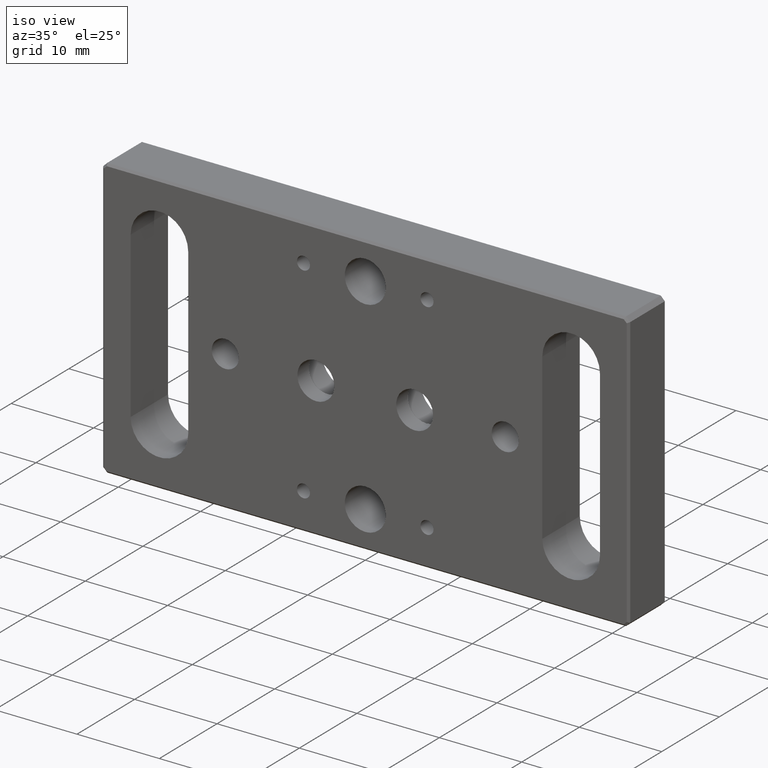
[diagram: clean part render]
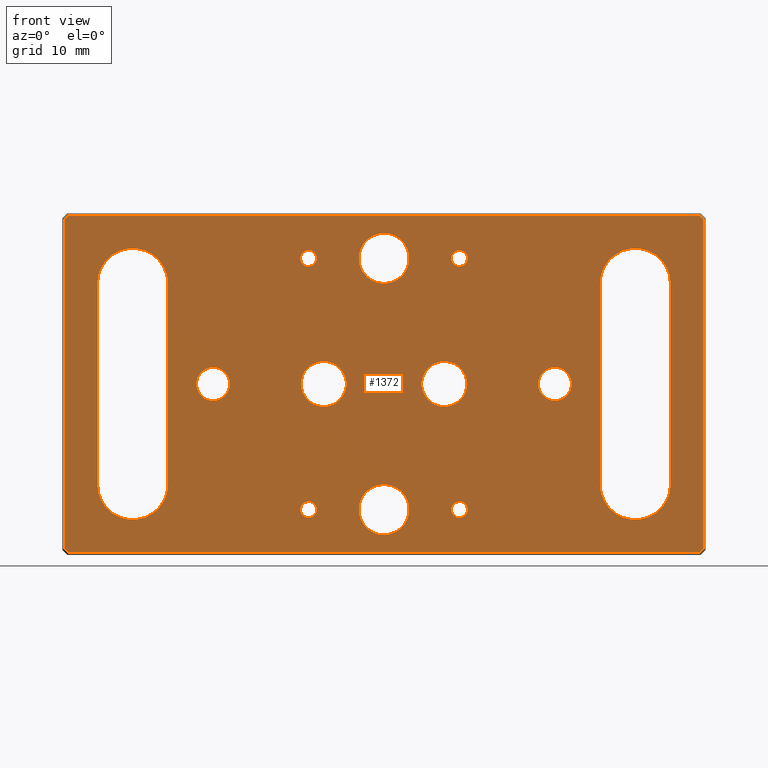
[diagram: tour spotlight — one face highlighted and labeled with its STEP entity id]
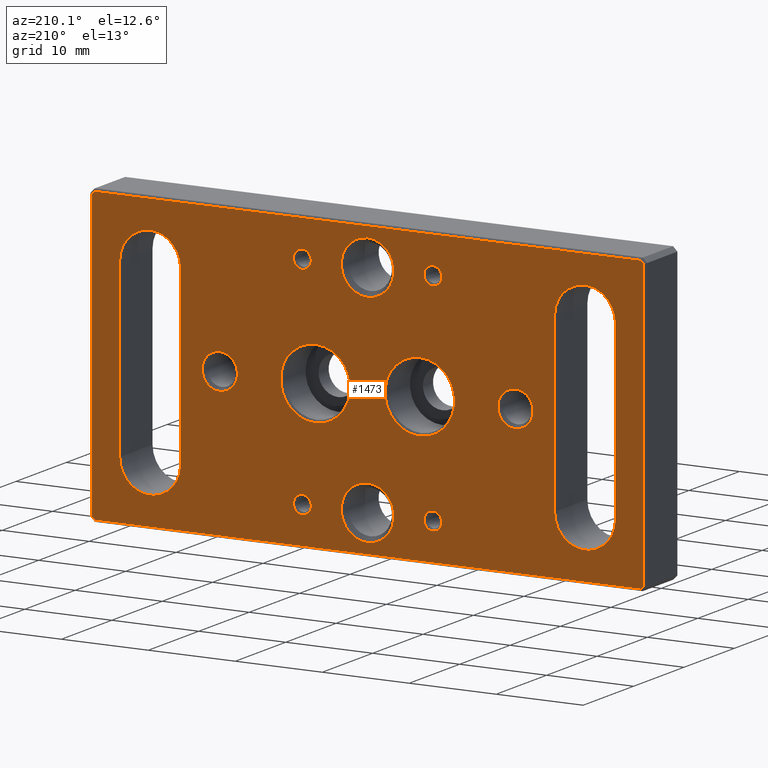
[diagram: tour spotlight — one face highlighted and labeled with its STEP entity id]
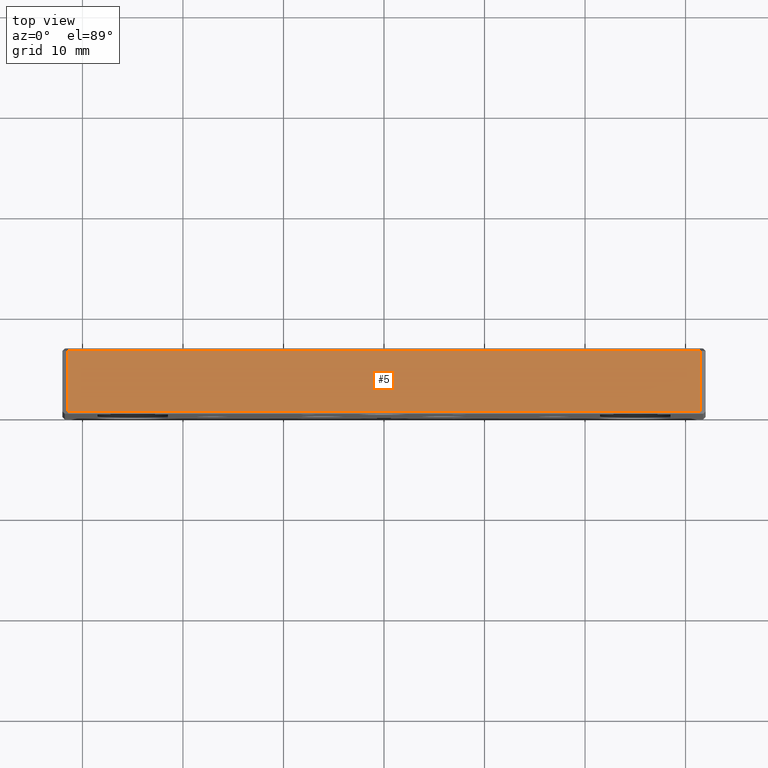
[diagram: tour spotlight — one face highlighted and labeled with its STEP entity id]
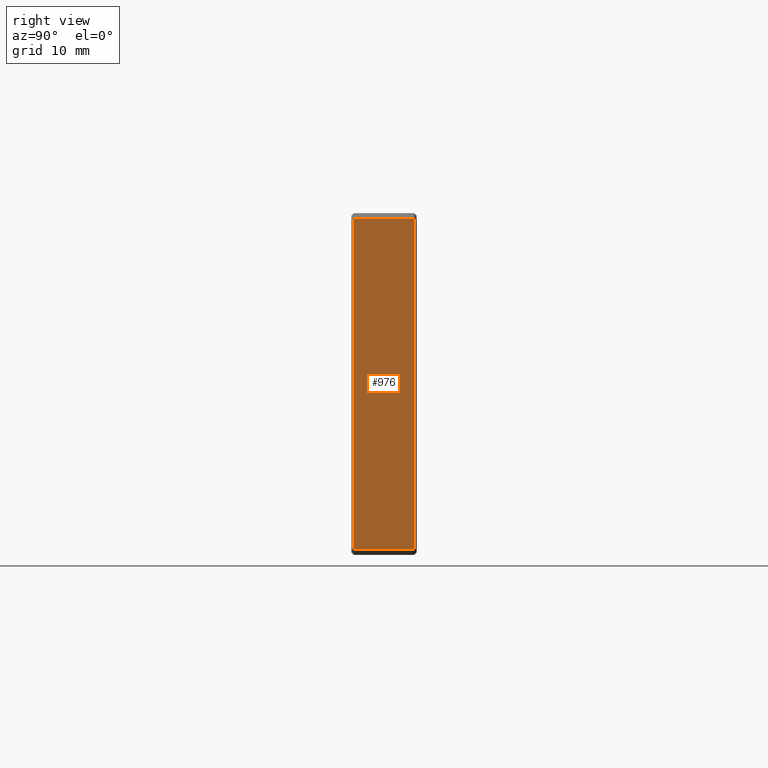
[diagram: tour spotlight — one face highlighted and labeled with its STEP entity id]
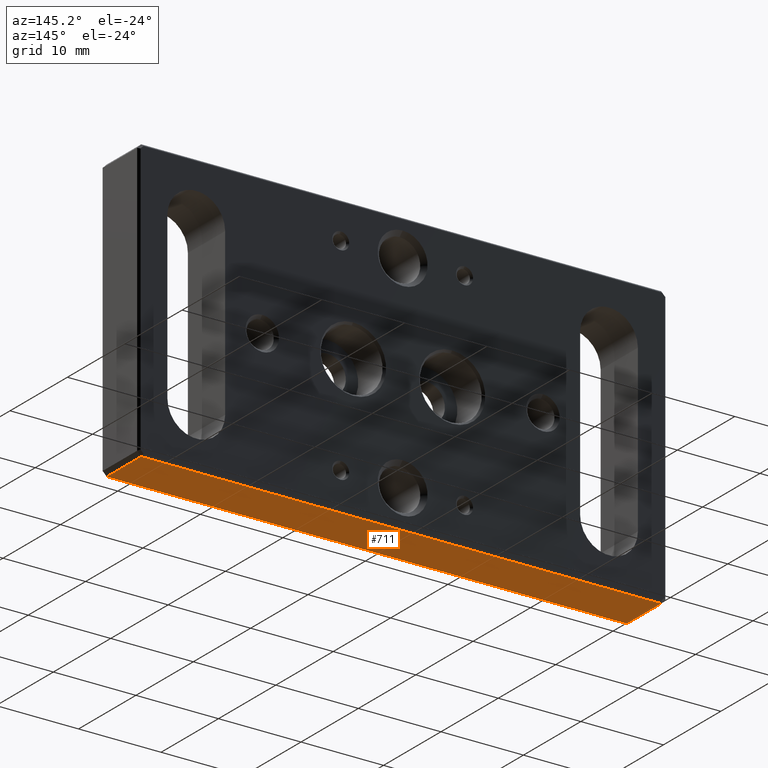
[diagram: tour spotlight — one face highlighted and labeled with its STEP entity id]
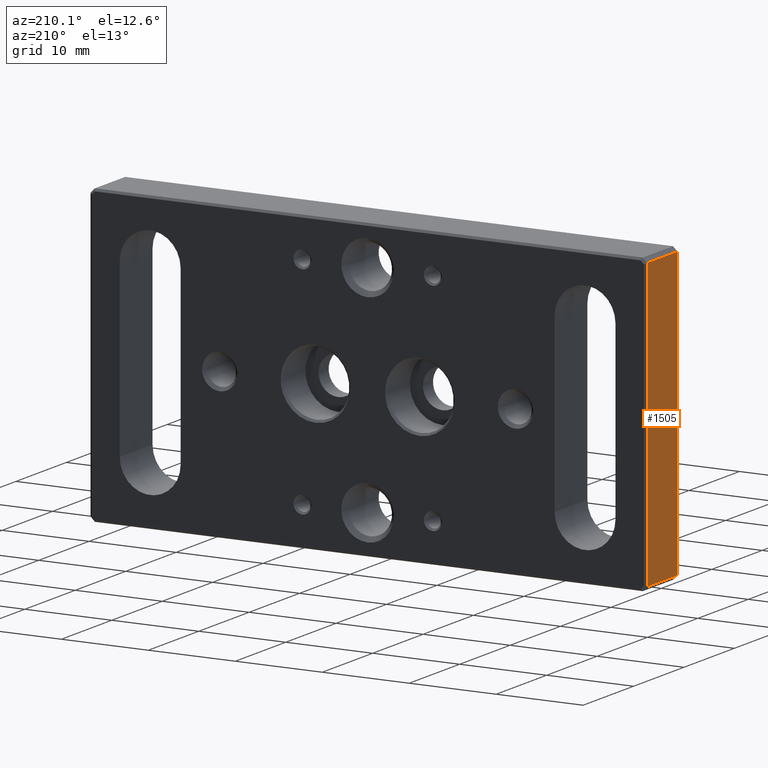
[diagram: tour spotlight — one face highlighted and labeled with its STEP entity id]
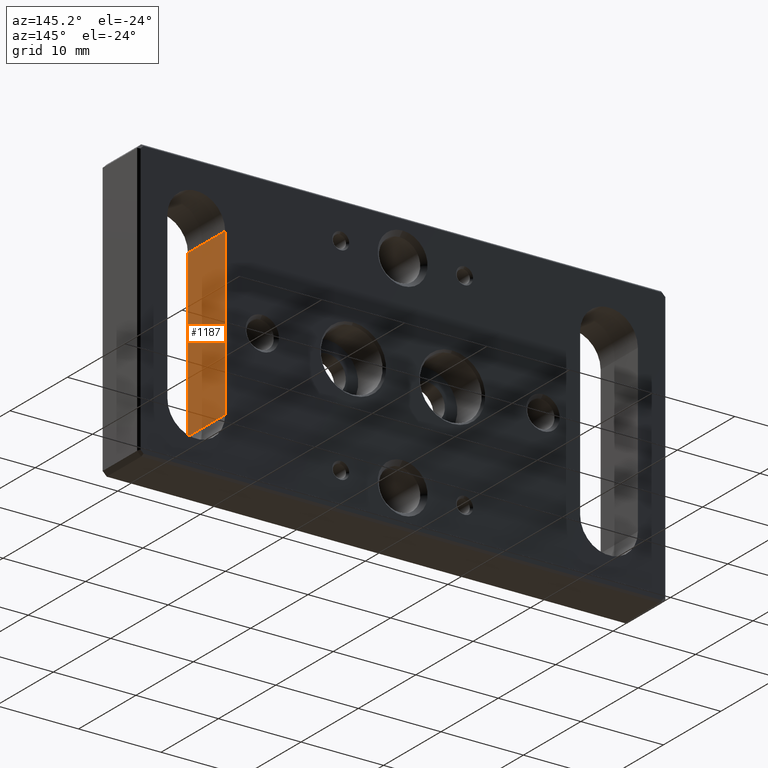
[diagram: tour spotlight — one face highlighted and labeled with its STEP entity id]
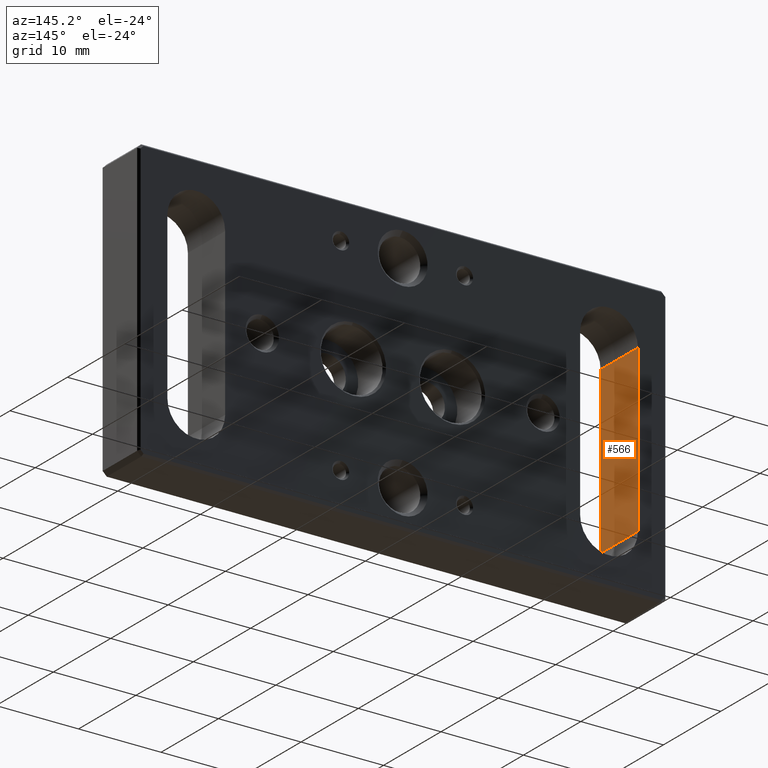
[diagram: tour spotlight — one face highlighted and labeled with its STEP entity id]
A machine part: a face-by-face anatomy tour. The part has 58 B-rep faces; the first image is the clean iso view, then the 8 largest visible faces are spotlighted one at a time (largest first), each with its STEP entity span.

Face 1 — front view, entity #1372. In plain terms, the highlighted planar face has unit normal (0, 1, 0).
Definition (entity closure, byte-faithful):
#9 = CARTESIAN_POINT ( 'NONE',  ( -21.50000000000000000, 0.000000000000000000, 10.00000000000000000 ) ) ;
#11 = ORIENTED_EDGE ( 'NONE', *, *, #694, .T. ) ;
#20 = FACE_BOUND ( 'NONE', #288, .T. ) ;
#21 = EDGE_CURVE ( 'NONE', #560, #1157, #1317, .T. ) ;
#29 = AXIS2_PLACEMENT_3D ( 'NONE', #855, #1243, #872 ) ;
#49 = DIRECTION ( 'NONE',  ( 0.000000000000000000, 1.000000000000000000, 0.000000000000000000 ) ) ;
#64 = CARTESIAN_POINT ( 'NONE',  ( 17.00000000000000000, 0.000000000000000000, 1.649999999999998579 ) ) ;
#73 = EDGE_CURVE ( 'NONE', #582, #864, #691, .T. ) ;
#75 = CARTESIAN_POINT ( 'NONE',  ( -31.75000000000000711, 0.000000000000000000, 16.39644660940670562 ) ) ;
#89 = EDGE_LOOP ( 'NONE', ( #759 ) ) ;
#91 = VERTEX_POINT ( 'NONE', #1115 ) ;
#92 = EDGE_CURVE ( 'NONE', #1084, #1084, #1109, .T. ) ;
#99 = DIRECTION ( 'NONE',  ( 0.000000000000000000, 1.000000000000000000, 0.000000000000000000 ) ) ;
#105 = AXIS2_PLACEMENT_3D ( 'NONE', #180, #390, #1287 ) ;
#108 = CARTESIAN_POINT ( 'NONE',  ( -5.999999999999999112, 0.000000000000000000, 2.250000000000012434 ) ) ;
#133 = VERTEX_POINT ( 'NONE', #75 ) ;
#138 = ORIENTED_EDGE ( 'NONE', *, *, #92, .T. ) ;
#140 = EDGE_CURVE ( 'NONE', #1157, #303, #570, .T. ) ;
#146 = VECTOR ( 'NONE', #1450, 1000.000000000000000 ) ;
#147 = CARTESIAN_POINT ( 'NONE',  ( -24.99999999999999645, 0.000000000000000000, 10.00000000000000000 ) ) ;
#155 = VECTOR ( 'NONE', #463, 1000.000000000000000 ) ;
#156 = ORIENTED_EDGE ( 'NONE', *, *, #1395, .T. ) ;
#157 = EDGE_LOOP ( 'NONE', ( #156 ) ) ;
#160 = VERTEX_POINT ( 'NONE', #1073 ) ;
#170 = CARTESIAN_POINT ( 'NONE',  ( -28.49999999999999645, 0.000000000000000000, 10.00000000000000000 ) ) ;
#177 = DIRECTION ( 'NONE',  ( 0.000000000000000000, 0.000000000000000000, 1.000000000000000000 ) ) ;
#180 = CARTESIAN_POINT ( 'NONE',  ( 0.000000000000000000, 0.000000000000000000, -12.50000000000000000 ) ) ;
#183 = ORIENTED_EDGE ( 'NONE', *, *, #644, .T. ) ;
#185 = VERTEX_POINT ( 'NONE', #696 ) ;
#189 = CARTESIAN_POINT ( 'NONE',  ( -7.499999999999998224, 0.000000000000000000, 12.50000000000000178 ) ) ;
#192 = CIRCLE ( 'NONE', #1547, 2.250000000000011546 ) ;
#195 = VERTEX_POINT ( 'NONE', #243 ) ;
#199 = CARTESIAN_POINT ( 'NONE',  ( 31.82322330470336524, 0.000000000000000000, -16.32322330470337590 ) ) ;
#202 = CARTESIAN_POINT ( 'NONE',  ( -31.32322330470337945, 0.000000000000000000, -16.82322330470336169 ) ) ;
#203 = CARTESIAN_POINT ( 'NONE',  ( -7.500000000000002665, 0.000000000000000000, -12.49999999999999822 ) ) ;
#221 = ORIENTED_EDGE ( 'NONE', *, *, #542, .T. ) ;
#243 = CARTESIAN_POINT ( 'NONE',  ( 28.49999999999997513, 0.000000000000000000, -9.999999999999992895 ) ) ;
#254 = LINE ( 'NONE', #1171, #1352 ) ;
#263 = DIRECTION ( 'NONE',  ( -0.000000000000000000, 1.000000000000000000, -0.000000000000000000 ) ) ;
#268 = EDGE_CURVE ( 'NONE', #293, #160, #1212, .T. ) ;
#269 = VERTEX_POINT ( 'NONE', #336 ) ;
#280 = DIRECTION ( 'NONE',  ( -0.000000000000000000, 1.000000000000000000, -0.000000000000000000 ) ) ;
#282 = VERTEX_POINT ( 'NONE', #1175 ) ;
#284 = CIRCLE ( 'NONE', #502, 0.8000000000000003775 ) ;
#288 = EDGE_LOOP ( 'NONE', ( #1514 ) ) ;
#290 = VECTOR ( 'NONE', #829, 1000.000000000000000 ) ;
#293 = VERTEX_POINT ( 'NONE', #1184 ) ;
#297 = CIRCLE ( 'NONE', #1329, 0.8000000000000003775 ) ;
#300 = DIRECTION ( 'NONE',  ( -0.000000000000000000, -0.000000000000000000, -1.000000000000000000 ) ) ;
#303 = VERTEX_POINT ( 'NONE', #1219 ) ;
#307 = DIRECTION ( 'NONE',  ( -1.000000000000000000, 0.000000000000000000, 0.000000000000000000 ) ) ;
#312 = CARTESIAN_POINT ( 'NONE',  ( -17.00000000000000000, 0.000000000000000000, 1.649999999999998579 ) ) ;
#320 = EDGE_CURVE ( 'NONE', #838, #838, #697, .T. ) ;
#322 = CARTESIAN_POINT ( 'NONE',  ( -31.39644660940671983, 0.000000000000000000, 16.74999999999999645 ) ) ;
#333 = DIRECTION ( 'NONE',  ( 0.7071067811865671127, 0.000000000000000000, 0.7071067811865279218 ) ) ;
#335 = DIRECTION ( 'NONE',  ( 0.000000000000000000, 0.000000000000000000, 1.000000000000000000 ) ) ;
#336 = CARTESIAN_POINT ( 'NONE',  ( 21.49999999999997868, 0.000000000000000000, -9.999999999999992895 ) ) ;
#342 = EDGE_CURVE ( 'NONE', #133, #282, #504, .T. ) ;
#346 = EDGE_LOOP ( 'NONE', ( #489, #11, #918, #915 ) ) ;
#347 = VERTEX_POINT ( 'NONE', #961 ) ;
#352 = VECTOR ( 'NONE', #739, 1000.000000000000000 ) ;
#363 = CARTESIAN_POINT ( 'NONE',  ( 21.49999999999997868, 0.000000000000000000, 9.999999999999992895 ) ) ;
#373 = VERTEX_POINT ( 'NONE', #363 ) ;
#387 = LINE ( 'NONE', #1386, #1211 ) ;
#388 = CARTESIAN_POINT ( 'NONE',  ( -28.49999999999999645, 0.000000000000000000, -10.00000000000000000 ) ) ;
#390 = DIRECTION ( 'NONE',  ( -0.000000000000000000, 1.000000000000000000, -0.000000000000000000 ) ) ;
#407 = AXIS2_PLACEMENT_3D ( 'NONE', #842, #720, #335 ) ;
#410 = FACE_BOUND ( 'NONE', #456, .T. ) ;
#423 = DIRECTION ( 'NONE',  ( 0.000000000000000000, 0.000000000000000000, 1.000000000000000000 ) ) ;
#424 = CARTESIAN_POINT ( 'NONE',  ( 5.999999999999999112, 0.000000000000000000, 0.000000000000000000 ) ) ;
#437 = ORIENTED_EDGE ( 'NONE', *, *, #1413, .T. ) ;
#442 = EDGE_CURVE ( 'NONE', #1309, #560, #1381, .T. ) ;
#454 = EDGE_LOOP ( 'NONE', ( #221, #183, #1487, #844 ) ) ;
#456 = EDGE_LOOP ( 'NONE', ( #499 ) ) ;
#457 = VERTEX_POINT ( 'NONE', #464 ) ;
#459 = LINE ( 'NONE', #199, #921 ) ;
#462 = DIRECTION ( 'NONE',  ( -0.000000000000000000, 1.000000000000000000, -0.000000000000000000 ) ) ;
#463 = DIRECTION ( 'NONE',  ( 1.000000000000000000, 0.000000000000000000, 0.000000000000000000 ) ) ;
#464 = CARTESIAN_POINT ( 'NONE',  ( 0.000000000000000000, 0.000000000000000000, -10.00000000000000178 ) ) ;
#471 = EDGE_CURVE ( 'NONE', #1024, #1635, #254, .T. ) ;
#472 = FACE_BOUND ( 'NONE', #454, .T. ) ;
#486 = VECTOR ( 'NONE', #300, 1000.000000000000000 ) ;
#489 = ORIENTED_EDGE ( 'NONE', *, *, #140, .T. ) ;
#498 = ORIENTED_EDGE ( 'NONE', *, *, #1646, .T. ) ;
#499 = ORIENTED_EDGE ( 'NONE', *, *, #854, .T. ) ;
#501 = FACE_BOUND ( 'NONE', #521, .T. ) ;
#502 = AXIS2_PLACEMENT_3D ( 'NONE', #189, #1230, #588 ) ;
#504 = LINE ( 'NONE', #1011, #352 ) ;
#505 = ORIENTED_EDGE ( 'NONE', *, *, #682, .T. ) ;
#514 = CIRCLE ( 'NONE', #407, 2.250000000000012434 ) ;
#521 = EDGE_LOOP ( 'NONE', ( #1557 ) ) ;
#531 = FACE_BOUND ( 'NONE', #157, .T. ) ;
#542 = EDGE_CURVE ( 'NONE', #1524, #195, #1572, .T. ) ;
#545 = LINE ( 'NONE', #1559, #1088 ) ;
#551 = AXIS2_PLACEMENT_3D ( 'NONE', #1610, #1108, #1076 ) ;
#560 = VERTEX_POINT ( 'NONE', #170 ) ;
#561 = ORIENTED_EDGE ( 'NONE', *, *, #471, .T. ) ;
#563 = EDGE_CURVE ( 'NONE', #457, #457, #824, .T. ) ;
#570 = LINE ( 'NONE', #584, #1618 ) ;
#572 = ORIENTED_EDGE ( 'NONE', *, *, #73, .T. ) ;
#578 = ORIENTED_EDGE ( 'NONE', *, *, #780, .T. ) ;
#582 = VERTEX_POINT ( 'NONE', #664 ) ;
#584 = CARTESIAN_POINT ( 'NONE',  ( -21.50000000000000000, 0.000000000000000000, -10.00000000000000000 ) ) ;
#587 = DIRECTION ( 'NONE',  ( 0.000000000000000000, 0.000000000000000000, 1.000000000000000000 ) ) ;
#588 = DIRECTION ( 'NONE',  ( 0.000000000000000000, 0.000000000000000000, 1.000000000000000000 ) ) ;
#600 = CARTESIAN_POINT ( 'NONE',  ( 5.999999999999999112, 0.000000000000000000, 2.250000000000011546 ) ) ;
#601 = DIRECTION ( 'NONE',  ( -0.000000000000000000, 1.000000000000000000, -0.000000000000000000 ) ) ;
#603 = CARTESIAN_POINT ( 'NONE',  ( 25.00000000000000355, 0.000000000000000000, -10.00000000000000000 ) ) ;
#608 = VERTEX_POINT ( 'NONE', #1229 ) ;
#609 = AXIS2_PLACEMENT_3D ( 'NONE', #203, #1619, #1094 ) ;
#622 = VERTEX_POINT ( 'NONE', #108 ) ;
#623 = CARTESIAN_POINT ( 'NONE',  ( 31.74999999999999289, 0.000000000000000000, 16.39644660940671983 ) ) ;
#629 = EDGE_LOOP ( 'NONE', ( #1478, #498, #657, #1070, #572, #505, #561, #578 ) ) ;
#644 = EDGE_CURVE ( 'NONE', #195, #269, #1311, .T. ) ;
#655 = FACE_BOUND ( 'NONE', #1594, .T. ) ;
#657 = ORIENTED_EDGE ( 'NONE', *, *, #268, .T. ) ;
#663 = EDGE_CURVE ( 'NONE', #347, #347, #284, .T. ) ;
#664 = CARTESIAN_POINT ( 'NONE',  ( 31.74999999999999289, 0.000000000000000000, -16.39644660940674115 ) ) ;
#682 = EDGE_CURVE ( 'NONE', #864, #1024, #840, .T. ) ;
#691 = LINE ( 'NONE', #1201, #290 ) ;
#694 = EDGE_CURVE ( 'NONE', #303, #1309, #1371, .T. ) ;
#696 = CARTESIAN_POINT ( 'NONE',  ( 7.500000000000000888, 0.000000000000000000, 13.30000000000000249 ) ) ;
#697 = CIRCLE ( 'NONE', #29, 1.649999999999998579 ) ;
#706 = EDGE_CURVE ( 'NONE', #373, #1524, #1081, .T. ) ;
#713 = CIRCLE ( 'NONE', #1539, 0.7999999999999986011 ) ;
#718 = DIRECTION ( 'NONE',  ( -0.7071067811865574537, 0.000000000000000000, 0.7071067811865376918 ) ) ;
#720 = DIRECTION ( 'NONE',  ( -0.000000000000000000, 1.000000000000000000, -0.000000000000000000 ) ) ;
#733 = EDGE_CURVE ( 'NONE', #160, #582, #459, .T. ) ;
#734 = CARTESIAN_POINT ( 'NONE',  ( 0.000000000000000000, 0.000000000000000000, 12.50000000000000000 ) ) ;
#739 = DIRECTION ( 'NONE',  ( 0.000000000000000000, 0.000000000000000000, -1.000000000000000000 ) ) ;
#759 = ORIENTED_EDGE ( 'NONE', *, *, #1072, .T. ) ;
#763 = AXIS2_PLACEMENT_3D ( 'NONE', #964, #1588, #1087 ) ;
#768 = CIRCLE ( 'NONE', #609, 0.8000000000000003775 ) ;
#780 = EDGE_CURVE ( 'NONE', #1635, #133, #387, .T. ) ;
#792 = ORIENTED_EDGE ( 'NONE', *, *, #563, .T. ) ;
#808 = DIRECTION ( 'NONE',  ( 0.000000000000000000, 0.000000000000000000, 1.000000000000000000 ) ) ;
#822 = LINE ( 'NONE', #202, #146 ) ;
#824 = CIRCLE ( 'NONE', #105, 2.499999999999998668 ) ;
#829 = DIRECTION ( 'NONE',  ( 0.000000000000000000, 0.000000000000000000, 1.000000000000000000 ) ) ;
#838 = VERTEX_POINT ( 'NONE', #64 ) ;
#840 = LINE ( 'NONE', #1346, #1285 ) ;
#842 = CARTESIAN_POINT ( 'NONE',  ( -5.999999999999999112, 0.000000000000000000, 0.000000000000000000 ) ) ;
#844 = ORIENTED_EDGE ( 'NONE', *, *, #706, .T. ) ;
#848 = CARTESIAN_POINT ( 'NONE',  ( 0.000000000000000000, 0.000000000000000000, 0.000000000000000000 ) ) ;
#849 = DIRECTION ( 'NONE',  ( 0.000000000000000000, 0.000000000000000000, -1.000000000000000000 ) ) ;
#854 = EDGE_CURVE ( 'NONE', #185, #185, #297, .T. ) ;
#855 = CARTESIAN_POINT ( 'NONE',  ( 17.00000000000000000, 0.000000000000000000, 0.000000000000000000 ) ) ;
#864 = VERTEX_POINT ( 'NONE', #623 ) ;
#866 = VERTEX_POINT ( 'NONE', #1364 ) ;
#872 = DIRECTION ( 'NONE',  ( 0.000000000000000000, 0.000000000000000000, 1.000000000000000000 ) ) ;
#875 = EDGE_LOOP ( 'NONE', ( #437 ) ) ;
#878 = FACE_BOUND ( 'NONE', #1509, .T. ) ;
#894 = EDGE_CURVE ( 'NONE', #1196, #1196, #192, .T. ) ;
#915 = ORIENTED_EDGE ( 'NONE', *, *, #21, .T. ) ;
#918 = ORIENTED_EDGE ( 'NONE', *, *, #442, .T. ) ;
#921 = VECTOR ( 'NONE', #333, 1000.000000000000000 ) ;
#954 = CARTESIAN_POINT ( 'NONE',  ( -17.00000000000000000, 0.000000000000000000, 0.000000000000000000 ) ) ;
#961 = CARTESIAN_POINT ( 'NONE',  ( -7.499999999999998224, 0.000000000000000000, 13.30000000000000249 ) ) ;
#963 = DIRECTION ( 'NONE',  ( 0.000000000000000000, -0.000000000000000000, 1.000000000000000000 ) ) ;
#964 = CARTESIAN_POINT ( 'NONE',  ( 25.00000000000000355, 0.000000000000000000, 10.00000000000000000 ) ) ;
#967 = DIRECTION ( 'NONE',  ( -0.000000000000000000, 1.000000000000000000, -0.000000000000000000 ) ) ;
#974 = FACE_OUTER_BOUND ( 'NONE', #629, .T. ) ;
#979 = AXIS2_PLACEMENT_3D ( 'NONE', #734, #601, #587 ) ;
#987 = CARTESIAN_POINT ( 'NONE',  ( 7.500000000000000888, 0.000000000000000000, 12.50000000000000178 ) ) ;
#1008 = FACE_BOUND ( 'NONE', #1299, .T. ) ;
#1011 = CARTESIAN_POINT ( 'NONE',  ( -31.75000000000000711, 0.000000000000000000, 0.000000000000000000 ) ) ;
#1019 = FACE_BOUND ( 'NONE', #89, .T. ) ;
#1024 = VERTEX_POINT ( 'NONE', #1502 ) ;
#1035 = AXIS2_PLACEMENT_3D ( 'NONE', #954, #462, #1464 ) ;
#1070 = ORIENTED_EDGE ( 'NONE', *, *, #733, .T. ) ;
#1072 = EDGE_CURVE ( 'NONE', #622, #622, #514, .T. ) ;
#1073 = CARTESIAN_POINT ( 'NONE',  ( 31.39644660940671272, 0.000000000000000000, -16.75000000000000355 ) ) ;
#1076 = DIRECTION ( 'NONE',  ( 0.000000000000000000, 0.000000000000000000, 1.000000000000000000 ) ) ;
#1081 = CIRCLE ( 'NONE', #763, 3.499999999999999556 ) ;
#1084 = VERTEX_POINT ( 'NONE', #312 ) ;
#1087 = DIRECTION ( 'NONE',  ( 0.000000000000000000, 0.000000000000000000, -1.000000000000000000 ) ) ;
#1088 = VECTOR ( 'NONE', #423, 1000.000000000000000 ) ;
#1094 = DIRECTION ( 'NONE',  ( 0.000000000000000000, 0.000000000000000000, 1.000000000000000000 ) ) ;
#1096 = CARTESIAN_POINT ( 'NONE',  ( -28.49999999999999645, 0.000000000000000000, -10.00000000000000000 ) ) ;
#1108 = DIRECTION ( 'NONE',  ( 0.000000000000000000, 1.000000000000000000, 0.000000000000000000 ) ) ;
#1109 = CIRCLE ( 'NONE', #1035, 1.649999999999998579 ) ;
#1115 = CARTESIAN_POINT ( 'NONE',  ( 7.499999999999997335, 0.000000000000000000, -11.70000000000000284 ) ) ;
#1122 = ORIENTED_EDGE ( 'NONE', *, *, #663, .T. ) ;
#1155 = AXIS2_PLACEMENT_3D ( 'NONE', #603, #1474, #849 ) ;
#1157 = VERTEX_POINT ( 'NONE', #9 ) ;
#1171 = CARTESIAN_POINT ( 'NONE',  ( 0.000000000000000000, 0.000000000000000000, 16.74999999999999645 ) ) ;
#1174 = ORIENTED_EDGE ( 'NONE', *, *, #894, .T. ) ;
#1175 = CARTESIAN_POINT ( 'NONE',  ( -31.75000000000000711, 0.000000000000000000, -16.39644660940673759 ) ) ;
#1184 = CARTESIAN_POINT ( 'NONE',  ( -31.39644660940673404, 0.000000000000000000, -16.75000000000000355 ) ) ;
#1196 = VERTEX_POINT ( 'NONE', #600 ) ;
#1201 = CARTESIAN_POINT ( 'NONE',  ( 31.74999999999999289, 0.000000000000000000, 0.000000000000000000 ) ) ;
#1211 = VECTOR ( 'NONE', #1257, 1000.000000000000000 ) ;
#1212 = LINE ( 'NONE', #1438, #155 ) ;
#1219 = CARTESIAN_POINT ( 'NONE',  ( -21.50000000000000000, 0.000000000000000000, -10.00000000000000000 ) ) ;
#1229 = CARTESIAN_POINT ( 'NONE',  ( -7.500000000000002665, 0.000000000000000000, -11.69999999999999929 ) ) ;
#1230 = DIRECTION ( 'NONE',  ( -0.000000000000000000, 1.000000000000000000, -0.000000000000000000 ) ) ;
#1235 = EDGE_LOOP ( 'NONE', ( #1122 ) ) ;
#1238 = CARTESIAN_POINT ( 'NONE',  ( 7.499999999999997335, 0.000000000000000000, -12.50000000000000000 ) ) ;
#1243 = DIRECTION ( 'NONE',  ( -0.000000000000000000, 1.000000000000000000, -0.000000000000000000 ) ) ;
#1253 = DIRECTION ( 'NONE',  ( 0.000000000000000000, 0.000000000000000000, 1.000000000000000000 ) ) ;
#1257 = DIRECTION ( 'NONE',  ( -0.7071067811865426878, 0.000000000000000000, -0.7071067811865524577 ) ) ;
#1283 = CARTESIAN_POINT ( 'NONE',  ( 28.50000000000000355, 0.000000000000000000, 9.999999999999992895 ) ) ;
#1285 = VECTOR ( 'NONE', #718, 999.9999999999998863 ) ;
#1287 = DIRECTION ( 'NONE',  ( 0.000000000000000000, 0.000000000000000000, 1.000000000000000000 ) ) ;
#1298 = VECTOR ( 'NONE', #1253, 1000.000000000000000 ) ;
#1299 = EDGE_LOOP ( 'NONE', ( #138 ) ) ;
#1309 = VERTEX_POINT ( 'NONE', #388 ) ;
#1311 = CIRCLE ( 'NONE', #1155, 3.499999999999999556 ) ;
#1317 = CIRCLE ( 'NONE', #1428, 3.499999999999999556 ) ;
#1325 = DIRECTION ( 'NONE',  ( -0.000000000000000000, -0.000000000000000000, -1.000000000000000000 ) ) ;
#1329 = AXIS2_PLACEMENT_3D ( 'NONE', #987, #263, #1493 ) ;
#1345 = DIRECTION ( 'NONE',  ( 0.000000000000000000, 0.000000000000000000, 1.000000000000000000 ) ) ;
#1346 = CARTESIAN_POINT ( 'NONE',  ( 31.32322330470334393, 0.000000000000000000, 16.82322330470335814 ) ) ;
#1352 = VECTOR ( 'NONE', #307, 1000.000000000000000 ) ;
#1364 = CARTESIAN_POINT ( 'NONE',  ( 0.000000000000000000, 0.000000000000000000, 15.00000000000000000 ) ) ;
#1371 = CIRCLE ( 'NONE', #551, 3.499999999999999556 ) ;
#1372 = ADVANCED_FACE ( 'NONE', ( #655, #20, #531, #1545, #410, #1640, #501, #1008, #878, #1019, #1520, #472, #974 ), #1480, .F. ) ;
#1379 = AXIS2_PLACEMENT_3D ( 'NONE', #848, #99, #963 ) ;
#1381 = LINE ( 'NONE', #1096, #1298 ) ;
#1385 = EDGE_CURVE ( 'NONE', #866, #866, #1430, .T. ) ;
#1386 = CARTESIAN_POINT ( 'NONE',  ( -31.82322330470336524, 0.000000000000000000, 16.32322330470334748 ) ) ;
#1395 = EDGE_CURVE ( 'NONE', #608, #608, #768, .T. ) ;
#1413 = EDGE_CURVE ( 'NONE', #91, #91, #713, .T. ) ;
#1428 = AXIS2_PLACEMENT_3D ( 'NONE', #147, #49, #808 ) ;
#1430 = CIRCLE ( 'NONE', #979, 2.499999999999998668 ) ;
#1438 = CARTESIAN_POINT ( 'NONE',  ( 0.000000000000000000, 0.000000000000000000, -16.75000000000000355 ) ) ;
#1442 = CARTESIAN_POINT ( 'NONE',  ( 28.49999999999997513, 0.000000000000000000, -9.999999999999992895 ) ) ;
#1450 = DIRECTION ( 'NONE',  ( 0.7071067811865524577, 0.000000000000000000, -0.7071067811865426878 ) ) ;
#1464 = DIRECTION ( 'NONE',  ( 0.000000000000000000, 0.000000000000000000, 1.000000000000000000 ) ) ;
#1474 = DIRECTION ( 'NONE',  ( 0.000000000000000000, 1.000000000000000000, -0.000000000000000000 ) ) ;
#1478 = ORIENTED_EDGE ( 'NONE', *, *, #342, .T. ) ;
#1480 = PLANE ( 'NONE',  #1379 ) ;
#1487 = ORIENTED_EDGE ( 'NONE', *, *, #1570, .T. ) ;
#1493 = DIRECTION ( 'NONE',  ( 0.000000000000000000, 0.000000000000000000, 1.000000000000000000 ) ) ;
#1502 = CARTESIAN_POINT ( 'NONE',  ( 31.39644660940670562, 0.000000000000000000, 16.74999999999999645 ) ) ;
#1509 = EDGE_LOOP ( 'NONE', ( #1174 ) ) ;
#1514 = ORIENTED_EDGE ( 'NONE', *, *, #1385, .T. ) ;
#1520 = FACE_BOUND ( 'NONE', #346, .T. ) ;
#1524 = VERTEX_POINT ( 'NONE', #1283 ) ;
#1539 = AXIS2_PLACEMENT_3D ( 'NONE', #1238, #967, #1345 ) ;
#1545 = FACE_BOUND ( 'NONE', #875, .T. ) ;
#1547 = AXIS2_PLACEMENT_3D ( 'NONE', #424, #280, #177 ) ;
#1557 = ORIENTED_EDGE ( 'NONE', *, *, #320, .T. ) ;
#1559 = CARTESIAN_POINT ( 'NONE',  ( 21.49999999999997868, 0.000000000000000000, -9.999999999999992895 ) ) ;
#1570 = EDGE_CURVE ( 'NONE', #269, #373, #545, .T. ) ;
#1572 = LINE ( 'NONE', #1442, #486 ) ;
#1588 = DIRECTION ( 'NONE',  ( 0.000000000000000000, 1.000000000000000000, -0.000000000000000000 ) ) ;
#1594 = EDGE_LOOP ( 'NONE', ( #792 ) ) ;
#1610 = CARTESIAN_POINT ( 'NONE',  ( -24.99999999999999645, 0.000000000000000000, -10.00000000000000000 ) ) ;
#1618 = VECTOR ( 'NONE', #1325, 1000.000000000000000 ) ;
#1619 = DIRECTION ( 'NONE',  ( -0.000000000000000000, 1.000000000000000000, -0.000000000000000000 ) ) ;
#1635 = VERTEX_POINT ( 'NONE', #322 ) ;
#1640 = FACE_BOUND ( 'NONE', #1235, .T. ) ;
#1646 = EDGE_CURVE ( 'NONE', #282, #293, #822, .T. ) ;

Face 2 — auxiliary view, entity #1473. In plain terms, the highlighted planar face has unit normal (0, 1, 0).
Definition (entity closure, byte-faithful):
#3 = EDGE_LOOP ( 'NONE', ( #837 ) ) ;
#6 = EDGE_LOOP ( 'NONE', ( #283 ) ) ;
#7 = CIRCLE ( 'NONE', #935, 2.024999999999999023 ) ;
#12 = CARTESIAN_POINT ( 'NONE',  ( 0.000000000000000000, 6.500000000000000000, 0.000000000000000000 ) ) ;
#17 = ORIENTED_EDGE ( 'NONE', *, *, #1106, .T. ) ;
#18 = DIRECTION ( 'NONE',  ( 0.000000000000000000, 0.000000000000000000, 1.000000000000000000 ) ) ;
#23 = EDGE_CURVE ( 'NONE', #700, #606, #201, .T. ) ;
#27 = FACE_BOUND ( 'NONE', #1028, .T. ) ;
#36 = ORIENTED_EDGE ( 'NONE', *, *, #1040, .F. ) ;
#43 = LINE ( 'NONE', #773, #1194 ) ;
#44 = CIRCLE ( 'NONE', #893, 1.024999999999999911 ) ;
#55 = AXIS2_PLACEMENT_3D ( 'NONE', #1462, #569, #947 ) ;
#77 = CARTESIAN_POINT ( 'NONE',  ( -5.999999999999999112, 6.500000000000000000, 4.000000000000023981 ) ) ;
#79 = CIRCLE ( 'NONE', #487, 1.024999999999999911 ) ;
#80 = LINE ( 'NONE', #727, #1216 ) ;
#84 = CARTESIAN_POINT ( 'NONE',  ( 0.000000000000000000, 6.500000000000000000, -9.475000000000001421 ) ) ;
#97 = CARTESIAN_POINT ( 'NONE',  ( -7.500000000000002665, 6.500000000000000000, -11.47499999999999964 ) ) ;
#98 = EDGE_CURVE ( 'NONE', #1043, #375, #334, .T. ) ;
#100 = DIRECTION ( 'NONE',  ( 0.000000000000000000, 0.000000000000000000, -1.000000000000000000 ) ) ;
#103 = DIRECTION ( 'NONE',  ( 0.000000000000000000, 0.000000000000000000, 1.000000000000000000 ) ) ;
#109 = CARTESIAN_POINT ( 'NONE',  ( -24.99999999999999645, 6.500000000000000000, 10.00000000000000000 ) ) ;
#118 = DIRECTION ( 'NONE',  ( 0.000000000000000000, 1.000000000000000000, 0.000000000000000000 ) ) ;
#136 = PLANE ( 'NONE',  #926 ) ;
#139 = ORIENTED_EDGE ( 'NONE', *, *, #978, .T. ) ;
#144 = CARTESIAN_POINT ( 'NONE',  ( 28.49999999999997513, 6.500000000000000000, -9.999999999999992895 ) ) ;
#158 = FACE_BOUND ( 'NONE', #769, .T. ) ;
#164 = VERTEX_POINT ( 'NONE', #736 ) ;
#176 = CARTESIAN_POINT ( 'NONE',  ( 7.499999999999997335, 6.500000000000000000, -11.47499999999999964 ) ) ;
#197 = EDGE_CURVE ( 'NONE', #1382, #440, #1027, .T. ) ;
#198 = EDGE_CURVE ( 'NONE', #440, #1043, #1265, .T. ) ;
#201 = LINE ( 'NONE', #1066, #814 ) ;
#207 = DIRECTION ( 'NONE',  ( -0.000000000000000000, -0.000000000000000000, -1.000000000000000000 ) ) ;
#210 = LINE ( 'NONE', #980, #1519 ) ;
#213 = AXIS2_PLACEMENT_3D ( 'NONE', #1176, #772, #18 ) ;
#215 = DIRECTION ( 'NONE',  ( 0.000000000000000000, 0.000000000000000000, 1.000000000000000000 ) ) ;
#227 = EDGE_CURVE ( 'NONE', #1331, #1331, #583, .T. ) ;
#230 = ORIENTED_EDGE ( 'NONE', *, *, #198, .T. ) ;
#232 = CARTESIAN_POINT ( 'NONE',  ( 21.49999999999997868, 6.500000000000000000, 9.999999999999992895 ) ) ;
#237 = ORIENTED_EDGE ( 'NONE', *, *, #227, .T. ) ;
#252 = EDGE_CURVE ( 'NONE', #1498, #1370, #1457, .T. ) ;
#283 = ORIENTED_EDGE ( 'NONE', *, *, #615, .F. ) ;
#294 = CIRCLE ( 'NONE', #55, 3.024999999999999911 ) ;
#295 = CARTESIAN_POINT ( 'NONE',  ( 28.50000000000000355, 6.500000000000000000, 9.999999999999992895 ) ) ;
#315 = VECTOR ( 'NONE', #1335, 1000.000000000000000 ) ;
#317 = ORIENTED_EDGE ( 'NONE', *, *, #23, .T. ) ;
#319 = CARTESIAN_POINT ( 'NONE',  ( 28.49999999999997513, 6.500000000000000000, -9.999999999999992895 ) ) ;
#323 = CIRCLE ( 'NONE', #430, 3.499999999999999556 ) ;
#324 = DIRECTION ( 'NONE',  ( 1.000000000000000000, 0.000000000000000000, 0.000000000000000000 ) ) ;
#327 = AXIS2_PLACEMENT_3D ( 'NONE', #488, #843, #1613 ) ;
#328 = AXIS2_PLACEMENT_3D ( 'NONE', #1376, #1272, #100 ) ;
#334 = LINE ( 'NONE', #707, #315 ) ;
#340 = DIRECTION ( 'NONE',  ( 0.000000000000000000, 0.000000000000000000, 1.000000000000000000 ) ) ;
#341 = CIRCLE ( 'NONE', #1342, 1.024999999999999911 ) ;
#348 = VECTOR ( 'NONE', #552, 1000.000000000000000 ) ;
#355 = CARTESIAN_POINT ( 'NONE',  ( -5.999999999999999112, 6.500000000000000000, 0.000000000000000000 ) ) ;
#359 = CARTESIAN_POINT ( 'NONE',  ( -17.00000000000000000, 6.500000000000000888, 2.024999999999999023 ) ) ;
#370 = CARTESIAN_POINT ( 'NONE',  ( 5.999999999999999112, 6.500000000000000000, 0.000000000000000000 ) ) ;
#371 = CARTESIAN_POINT ( 'NONE',  ( -17.00000000000000000, 6.500000000000000888, 0.000000000000000000 ) ) ;
#374 = EDGE_CURVE ( 'NONE', #1427, #1321, #1625, .T. ) ;
#375 = VERTEX_POINT ( 'NONE', #751 ) ;
#377 = EDGE_CURVE ( 'NONE', #164, #1434, #210, .T. ) ;
#380 = DIRECTION ( 'NONE',  ( -0.000000000000000000, 1.000000000000000000, -0.000000000000000000 ) ) ;
#382 = DIRECTION ( 'NONE',  ( 0.000000000000000000, 1.000000000000000000, -0.000000000000000000 ) ) ;
#385 = AXIS2_PLACEMENT_3D ( 'NONE', #355, #728, #604 ) ;
#394 = EDGE_CURVE ( 'NONE', #1213, #1213, #668, .T. ) ;
#400 = ORIENTED_EDGE ( 'NONE', *, *, #197, .T. ) ;
#401 = VECTOR ( 'NONE', #324, 1000.000000000000000 ) ;
#413 = EDGE_CURVE ( 'NONE', #586, #586, #904, .T. ) ;
#421 = CIRCLE ( 'NONE', #708, 1.025000000000001688 ) ;
#427 = CIRCLE ( 'NONE', #213, 2.024999999999999023 ) ;
#430 = AXIS2_PLACEMENT_3D ( 'NONE', #1010, #382, #912 ) ;
#438 = VERTEX_POINT ( 'NONE', #619 ) ;
#440 = VERTEX_POINT ( 'NONE', #1002 ) ;
#451 = VECTOR ( 'NONE', #1641, 1000.000000000000000 ) ;
#473 = DIRECTION ( 'NONE',  ( -0.000000000000000000, 1.000000000000000000, -0.000000000000000000 ) ) ;
#487 = AXIS2_PLACEMENT_3D ( 'NONE', #1232, #738, #1252 ) ;
#488 = CARTESIAN_POINT ( 'NONE',  ( 0.000000000000000000, 6.500000000000000000, -12.50000000000000000 ) ) ;
#500 = DIRECTION ( 'NONE',  ( 0.000000000000000000, 0.000000000000000000, -1.000000000000000000 ) ) ;
#515 = ORIENTED_EDGE ( 'NONE', *, *, #252, .F. ) ;
#529 = FACE_OUTER_BOUND ( 'NONE', #541, .T. ) ;
#541 = EDGE_LOOP ( 'NONE', ( #571, #317, #1558, #139, #400, #230, #1167, #17 ) ) ;
#544 = EDGE_LOOP ( 'NONE', ( #1362 ) ) ;
#552 = DIRECTION ( 'NONE',  ( 0.000000000000000000, 0.000000000000000000, 1.000000000000000000 ) ) ;
#565 = AXIS2_PLACEMENT_3D ( 'NONE', #109, #118, #1241 ) ;
#569 = DIRECTION ( 'NONE',  ( -0.000000000000000000, 1.000000000000000000, -0.000000000000000000 ) ) ;
#571 = ORIENTED_EDGE ( 'NONE', *, *, #1443, .T. ) ;
#575 = CARTESIAN_POINT ( 'NONE',  ( 31.39644660940671272, 6.500000000000000000, 16.75000000000000355 ) ) ;
#583 = CIRCLE ( 'NONE', #1085, 4.000000000000010658 ) ;
#586 = VERTEX_POINT ( 'NONE', #84 ) ;
#590 = CARTESIAN_POINT ( 'NONE',  ( -28.49999999999999645, 6.500000000000000000, 10.00000000000000000 ) ) ;
#592 = CARTESIAN_POINT ( 'NONE',  ( -24.99999999999999645, 6.500000000000000000, -10.00000000000000000 ) ) ;
#594 = VERTEX_POINT ( 'NONE', #973 ) ;
#595 = CARTESIAN_POINT ( 'NONE',  ( 7.500000000000000888, 6.500000000000000000, 12.50000000000000178 ) ) ;
#604 = DIRECTION ( 'NONE',  ( 0.000000000000000000, 0.000000000000000000, 1.000000000000000000 ) ) ;
#606 = VERTEX_POINT ( 'NONE', #946 ) ;
#612 = FACE_BOUND ( 'NONE', #6, .T. ) ;
#615 = EDGE_CURVE ( 'NONE', #594, #594, #341, .T. ) ;
#619 = CARTESIAN_POINT ( 'NONE',  ( -21.50000000000000000, 6.500000000000000000, 10.00000000000000000 ) ) ;
#625 = CARTESIAN_POINT ( 'NONE',  ( -28.49999999999999645, 6.500000000000000000, -10.00000000000000000 ) ) ;
#639 = CARTESIAN_POINT ( 'NONE',  ( -7.499999999999998224, 6.500000000000000000, 12.50000000000000178 ) ) ;
#665 = EDGE_CURVE ( 'NONE', #1307, #1307, #421, .T. ) ;
#668 = CIRCLE ( 'NONE', #385, 4.000000000000023981 ) ;
#689 = ORIENTED_EDGE ( 'NONE', *, *, #377, .F. ) ;
#699 = CARTESIAN_POINT ( 'NONE',  ( 7.499999999999997335, 6.500000000000000000, -12.50000000000000000 ) ) ;
#700 = VERTEX_POINT ( 'NONE', #575 ) ;
#707 = CARTESIAN_POINT ( 'NONE',  ( -31.75000000000001421, 6.500000000000000000, 16.49999999999998224 ) ) ;
#708 = AXIS2_PLACEMENT_3D ( 'NONE', #699, #473, #340 ) ;
#709 = CARTESIAN_POINT ( 'NONE',  ( 5.999999999999999112, 6.500000000000000000, 4.000000000000010658 ) ) ;
#719 = VECTOR ( 'NONE', #500, 1000.000000000000000 ) ;
#722 = ORIENTED_EDGE ( 'NONE', *, *, #1568, .F. ) ;
#727 = CARTESIAN_POINT ( 'NONE',  ( -24.07322330470357485, 6.500000000000000000, 24.07322330470324800 ) ) ;
#728 = DIRECTION ( 'NONE',  ( -0.000000000000000000, -1.000000000000000000, -0.000000000000000000 ) ) ;
#732 = VERTEX_POINT ( 'NONE', #359 ) ;
#736 = CARTESIAN_POINT ( 'NONE',  ( 21.49999999999997868, 6.500000000000000000, -9.999999999999992895 ) ) ;
#738 = DIRECTION ( 'NONE',  ( -0.000000000000000000, 1.000000000000000000, -0.000000000000000000 ) ) ;
#747 = DIRECTION ( 'NONE',  ( 0.000000000000000000, 0.000000000000000000, 1.000000000000000000 ) ) ;
#751 = CARTESIAN_POINT ( 'NONE',  ( -31.75000000000001421, 6.500000000000000000, 16.39644660940670207 ) ) ;
#753 = EDGE_LOOP ( 'NONE', ( #845 ) ) ;
#760 = FACE_BOUND ( 'NONE', #1281, .T. ) ;
#761 = LINE ( 'NONE', #1639, #719 ) ;
#764 = EDGE_CURVE ( 'NONE', #813, #813, #44, .T. ) ;
#769 = EDGE_LOOP ( 'NONE', ( #1552 ) ) ;
#772 = DIRECTION ( 'NONE',  ( -0.000000000000000000, 1.000000000000000000, -0.000000000000000000 ) ) ;
#773 = CARTESIAN_POINT ( 'NONE',  ( 24.07322330470249483, 6.500000000000000000, -24.07322330470382710 ) ) ;
#791 = EDGE_LOOP ( 'NONE', ( #1586, #1390, #1023, #722 ) ) ;
#812 = ORIENTED_EDGE ( 'NONE', *, *, #764, .F. ) ;
#813 = VERTEX_POINT ( 'NONE', #1319 ) ;
#814 = VECTOR ( 'NONE', #932, 999.9999999999998863 ) ;
#823 = EDGE_CURVE ( 'NONE', #1041, #438, #1409, .T. ) ;
#826 = CARTESIAN_POINT ( 'NONE',  ( -31.39644660940671272, 6.500000000000000000, 16.75000000000000355 ) ) ;
#832 = EDGE_CURVE ( 'NONE', #1434, #1498, #1575, .T. ) ;
#837 = ORIENTED_EDGE ( 'NONE', *, *, #665, .F. ) ;
#839 = CARTESIAN_POINT ( 'NONE',  ( 31.39644660940671272, 6.500000000000000000, -16.75000000000001066 ) ) ;
#843 = DIRECTION ( 'NONE',  ( -0.000000000000000000, 1.000000000000000000, -0.000000000000000000 ) ) ;
#845 = ORIENTED_EDGE ( 'NONE', *, *, #394, .T. ) ;
#846 = VERTEX_POINT ( 'NONE', #1354 ) ;
#853 = DIRECTION ( 'NONE',  ( -0.000000000000000000, 1.000000000000000000, -0.000000000000000000 ) ) ;
#870 = VECTOR ( 'NONE', #1448, 1000.000000000000000 ) ;
#876 = EDGE_CURVE ( 'NONE', #606, #1562, #761, .T. ) ;
#884 = FACE_BOUND ( 'NONE', #1351, .T. ) ;
#891 = EDGE_LOOP ( 'NONE', ( #1112, #515, #943, #689 ) ) ;
#893 = AXIS2_PLACEMENT_3D ( 'NONE', #639, #380, #1263 ) ;
#904 = CIRCLE ( 'NONE', #327, 3.024999999999999911 ) ;
#908 = FACE_BOUND ( 'NONE', #753, .T. ) ;
#909 = DIRECTION ( 'NONE',  ( -0.7071067811865671127, 0.000000000000000000, -0.7071067811865279218 ) ) ;
#912 = DIRECTION ( 'NONE',  ( 0.000000000000000000, 0.000000000000000000, -1.000000000000000000 ) ) ;
#916 = LINE ( 'NONE', #1421, #348 ) ;
#926 = AXIS2_PLACEMENT_3D ( 'NONE', #12, #1300, #1160 ) ;
#932 = DIRECTION ( 'NONE',  ( 0.7071067811865574537, 0.000000000000000000, -0.7071067811865376918 ) ) ;
#935 = AXIS2_PLACEMENT_3D ( 'NONE', #371, #853, #1358 ) ;
#936 = CARTESIAN_POINT ( 'NONE',  ( 31.75000000000000000, 6.500000000000000000, -16.39644660940674115 ) ) ;
#943 = ORIENTED_EDGE ( 'NONE', *, *, #832, .F. ) ;
#946 = CARTESIAN_POINT ( 'NONE',  ( 31.75000000000000000, 6.500000000000000000, 16.39644660940672338 ) ) ;
#947 = DIRECTION ( 'NONE',  ( 0.000000000000000000, 0.000000000000000000, 1.000000000000000000 ) ) ;
#962 = AXIS2_PLACEMENT_3D ( 'NONE', #592, #1623, #1506 ) ;
#973 = CARTESIAN_POINT ( 'NONE',  ( 7.500000000000000888, 6.500000000000000000, 13.52500000000000213 ) ) ;
#978 = EDGE_CURVE ( 'NONE', #1562, #1382, #43, .T. ) ;
#980 = CARTESIAN_POINT ( 'NONE',  ( 21.49999999999997868, 6.500000000000000000, -9.999999999999992895 ) ) ;
#984 = VERTEX_POINT ( 'NONE', #97 ) ;
#991 = CARTESIAN_POINT ( 'NONE',  ( -21.50000000000000000, 6.500000000000000000, -10.00000000000000000 ) ) ;
#992 = CARTESIAN_POINT ( 'NONE',  ( -31.50000000000001421, 6.500000000000000000, -16.75000000000001066 ) ) ;
#1002 = CARTESIAN_POINT ( 'NONE',  ( -31.39644660940674115, 6.500000000000000000, -16.75000000000001066 ) ) ;
#1010 = CARTESIAN_POINT ( 'NONE',  ( 25.00000000000000355, 6.500000000000000000, -10.00000000000000000 ) ) ;
#1023 = ORIENTED_EDGE ( 'NONE', *, *, #823, .F. ) ;
#1027 = LINE ( 'NONE', #992, #451 ) ;
#1028 = EDGE_LOOP ( 'NONE', ( #237 ) ) ;
#1036 = EDGE_LOOP ( 'NONE', ( #36 ) ) ;
#1040 = EDGE_CURVE ( 'NONE', #984, #984, #79, .T. ) ;
#1041 = VERTEX_POINT ( 'NONE', #590 ) ;
#1043 = VERTEX_POINT ( 'NONE', #1242 ) ;
#1066 = CARTESIAN_POINT ( 'NONE',  ( 24.07322330470292471, 6.500000000000000000, 24.07322330470358906 ) ) ;
#1078 = EDGE_CURVE ( 'NONE', #732, #732, #7, .T. ) ;
#1083 = EDGE_LOOP ( 'NONE', ( #812 ) ) ;
#1085 = AXIS2_PLACEMENT_3D ( 'NONE', #370, #1378, #747 ) ;
#1106 = EDGE_CURVE ( 'NONE', #375, #1398, #80, .T. ) ;
#1112 = ORIENTED_EDGE ( 'NONE', *, *, #1146, .F. ) ;
#1137 = VECTOR ( 'NONE', #207, 1000.000000000000000 ) ;
#1143 = ORIENTED_EDGE ( 'NONE', *, *, #1207, .F. ) ;
#1146 = EDGE_CURVE ( 'NONE', #1370, #164, #323, .T. ) ;
#1160 = DIRECTION ( 'NONE',  ( 0.000000000000000000, -0.000000000000000000, 1.000000000000000000 ) ) ;
#1167 = ORIENTED_EDGE ( 'NONE', *, *, #98, .T. ) ;
#1176 = CARTESIAN_POINT ( 'NONE',  ( 17.00000000000000000, 6.500000000000000888, 0.000000000000000000 ) ) ;
#1194 = VECTOR ( 'NONE', #909, 1000.000000000000000 ) ;
#1206 = CARTESIAN_POINT ( 'NONE',  ( 31.49999999999997868, 6.500000000000000000, 16.75000000000000355 ) ) ;
#1207 = EDGE_CURVE ( 'NONE', #846, #846, #294, .T. ) ;
#1213 = VERTEX_POINT ( 'NONE', #77 ) ;
#1216 = VECTOR ( 'NONE', #1259, 1000.000000000000000 ) ;
#1232 = CARTESIAN_POINT ( 'NONE',  ( -7.500000000000002665, 6.500000000000000000, -12.49999999999999822 ) ) ;
#1240 = FACE_BOUND ( 'NONE', #1036, .T. ) ;
#1241 = DIRECTION ( 'NONE',  ( 0.000000000000000000, 0.000000000000000000, 1.000000000000000000 ) ) ;
#1242 = CARTESIAN_POINT ( 'NONE',  ( -31.75000000000001421, 6.500000000000000000, -16.39644660940674470 ) ) ;
#1252 = DIRECTION ( 'NONE',  ( 0.000000000000000000, 0.000000000000000000, 1.000000000000000000 ) ) ;
#1259 = DIRECTION ( 'NONE',  ( 0.7071067811865426878, 0.000000000000000000, 0.7071067811865524577 ) ) ;
#1263 = DIRECTION ( 'NONE',  ( 0.000000000000000000, 0.000000000000000000, 1.000000000000000000 ) ) ;
#1265 = LINE ( 'NONE', #1528, #1595 ) ;
#1269 = EDGE_CURVE ( 'NONE', #438, #1427, #1340, .T. ) ;
#1272 = DIRECTION ( 'NONE',  ( 0.000000000000000000, 1.000000000000000000, -0.000000000000000000 ) ) ;
#1281 = EDGE_LOOP ( 'NONE', ( #1143 ) ) ;
#1291 = FACE_BOUND ( 'NONE', #791, .T. ) ;
#1300 = DIRECTION ( 'NONE',  ( 0.000000000000000000, 1.000000000000000000, 0.000000000000000000 ) ) ;
#1307 = VERTEX_POINT ( 'NONE', #176 ) ;
#1319 = CARTESIAN_POINT ( 'NONE',  ( -7.499999999999998224, 6.500000000000000000, 13.52500000000000213 ) ) ;
#1321 = VERTEX_POINT ( 'NONE', #625 ) ;
#1331 = VERTEX_POINT ( 'NONE', #709 ) ;
#1335 = DIRECTION ( 'NONE',  ( 0.000000000000000000, 0.000000000000000000, 1.000000000000000000 ) ) ;
#1340 = LINE ( 'NONE', #991, #1137 ) ;
#1342 = AXIS2_PLACEMENT_3D ( 'NONE', #595, #1620, #215 ) ;
#1351 = EDGE_LOOP ( 'NONE', ( #1418 ) ) ;
#1354 = CARTESIAN_POINT ( 'NONE',  ( 0.000000000000000000, 6.500000000000000000, 15.52500000000000036 ) ) ;
#1358 = DIRECTION ( 'NONE',  ( 0.000000000000000000, 0.000000000000000000, 1.000000000000000000 ) ) ;
#1362 = ORIENTED_EDGE ( 'NONE', *, *, #1536, .F. ) ;
#1365 = CARTESIAN_POINT ( 'NONE',  ( -21.50000000000000000, 6.500000000000000000, -10.00000000000000000 ) ) ;
#1367 = DIRECTION ( 'NONE',  ( -0.7071067811865524577, 0.000000000000000000, 0.7071067811865426878 ) ) ;
#1370 = VERTEX_POINT ( 'NONE', #144 ) ;
#1376 = CARTESIAN_POINT ( 'NONE',  ( 25.00000000000000355, 6.500000000000000000, 10.00000000000000000 ) ) ;
#1378 = DIRECTION ( 'NONE',  ( -0.000000000000000000, -1.000000000000000000, -0.000000000000000000 ) ) ;
#1382 = VERTEX_POINT ( 'NONE', #839 ) ;
#1390 = ORIENTED_EDGE ( 'NONE', *, *, #1269, .F. ) ;
#1398 = VERTEX_POINT ( 'NONE', #826 ) ;
#1409 = CIRCLE ( 'NONE', #565, 3.499999999999999556 ) ;
#1418 = ORIENTED_EDGE ( 'NONE', *, *, #413, .F. ) ;
#1421 = CARTESIAN_POINT ( 'NONE',  ( -28.49999999999999645, 6.500000000000000000, -10.00000000000000000 ) ) ;
#1427 = VERTEX_POINT ( 'NONE', #1365 ) ;
#1434 = VERTEX_POINT ( 'NONE', #232 ) ;
#1443 = EDGE_CURVE ( 'NONE', #1398, #700, #1630, .T. ) ;
#1448 = DIRECTION ( 'NONE',  ( -0.000000000000000000, -0.000000000000000000, -1.000000000000000000 ) ) ;
#1457 = LINE ( 'NONE', #319, #870 ) ;
#1462 = CARTESIAN_POINT ( 'NONE',  ( 0.000000000000000000, 6.500000000000000000, 12.50000000000000000 ) ) ;
#1473 = ADVANCED_FACE ( 'NONE', ( #884, #760, #1240, #1649, #612, #1638, #1518, #158, #27, #908, #1291, #1566, #529 ), #136, .T. ) ;
#1498 = VERTEX_POINT ( 'NONE', #295 ) ;
#1501 = CARTESIAN_POINT ( 'NONE',  ( 17.00000000000000000, 6.500000000000000888, 2.024999999999999023 ) ) ;
#1506 = DIRECTION ( 'NONE',  ( 0.000000000000000000, 0.000000000000000000, 1.000000000000000000 ) ) ;
#1518 = FACE_BOUND ( 'NONE', #544, .T. ) ;
#1519 = VECTOR ( 'NONE', #103, 1000.000000000000000 ) ;
#1528 = CARTESIAN_POINT ( 'NONE',  ( -24.07322330470315563, 6.500000000000000000, -24.07322330470348959 ) ) ;
#1536 = EDGE_CURVE ( 'NONE', #1628, #1628, #427, .T. ) ;
#1552 = ORIENTED_EDGE ( 'NONE', *, *, #1078, .F. ) ;
#1558 = ORIENTED_EDGE ( 'NONE', *, *, #876, .T. ) ;
#1562 = VERTEX_POINT ( 'NONE', #936 ) ;
#1566 = FACE_BOUND ( 'NONE', #891, .T. ) ;
#1568 = EDGE_CURVE ( 'NONE', #1321, #1041, #916, .T. ) ;
#1575 = CIRCLE ( 'NONE', #328, 3.499999999999999556 ) ;
#1586 = ORIENTED_EDGE ( 'NONE', *, *, #374, .F. ) ;
#1595 = VECTOR ( 'NONE', #1367, 1000.000000000000000 ) ;
#1613 = DIRECTION ( 'NONE',  ( 0.000000000000000000, 0.000000000000000000, 1.000000000000000000 ) ) ;
#1620 = DIRECTION ( 'NONE',  ( -0.000000000000000000, 1.000000000000000000, -0.000000000000000000 ) ) ;
#1623 = DIRECTION ( 'NONE',  ( 0.000000000000000000, 1.000000000000000000, 0.000000000000000000 ) ) ;
#1625 = CIRCLE ( 'NONE', #962, 3.499999999999999556 ) ;
#1628 = VERTEX_POINT ( 'NONE', #1501 ) ;
#1630 = LINE ( 'NONE', #1206, #401 ) ;
#1638 = FACE_BOUND ( 'NONE', #1083, .T. ) ;
#1639 = CARTESIAN_POINT ( 'NONE',  ( 31.75000000000000000, 6.500000000000000000, -16.50000000000001776 ) ) ;
#1641 = DIRECTION ( 'NONE',  ( -1.000000000000000000, 0.000000000000000000, 0.000000000000000000 ) ) ;
#1649 = FACE_BOUND ( 'NONE', #3, .T. ) ;

Face 3 — top view, entity #5. In plain terms, the highlighted planar face has unit normal (0, 0, -1).
Definition (entity closure, byte-faithful):
#5 = ADVANCED_FACE ( 'NONE', ( #1530 ), #398, .F. ) ;
#13 = CARTESIAN_POINT ( 'NONE',  ( -31.50000000000000000, 6.250000000000013323, 16.99999999999999645 ) ) ;
#19 = CARTESIAN_POINT ( 'NONE',  ( 31.49999999999997868, 6.250000000000013323, 16.99999999999999645 ) ) ;
#33 = VERTEX_POINT ( 'NONE', #193 ) ;
#67 = VERTEX_POINT ( 'NONE', #182 ) ;
#182 = CARTESIAN_POINT ( 'NONE',  ( 31.49999999999997868, 0.2500000000000002220, 16.99999999999999645 ) ) ;
#193 = CARTESIAN_POINT ( 'NONE',  ( -31.50000000000000000, 0.2500000000000002220, 16.99999999999999645 ) ) ;
#224 = DIRECTION ( 'NONE',  ( 0.000000000000000000, -1.000000000000000000, 0.000000000000000000 ) ) ;
#276 = DIRECTION ( 'NONE',  ( 0.000000000000000000, 0.000000000000000000, -1.000000000000000000 ) ) ;
#339 = LINE ( 'NONE', #704, #1403 ) ;
#386 = ORIENTED_EDGE ( 'NONE', *, *, #1361, .T. ) ;
#398 = PLANE ( 'NONE',  #737 ) ;
#405 = VECTOR ( 'NONE', #1279, 1000.000000000000000 ) ;
#513 = CARTESIAN_POINT ( 'NONE',  ( -32.00000000000000711, 6.500000000000000000, 16.99999999999999645 ) ) ;
#648 = DIRECTION ( 'NONE',  ( 1.000000000000000000, 0.000000000000000000, 0.000000000000000000 ) ) ;
#704 = CARTESIAN_POINT ( 'NONE',  ( -31.50000000000000000, 6.500000000000000000, 16.99999999999999645 ) ) ;
#737 = AXIS2_PLACEMENT_3D ( 'NONE', #513, #276, #1149 ) ;
#806 = ORIENTED_EDGE ( 'NONE', *, *, #1375, .T. ) ;
#847 = VECTOR ( 'NONE', #648, 1000.000000000000000 ) ;
#856 = VERTEX_POINT ( 'NONE', #860 ) ;
#860 = CARTESIAN_POINT ( 'NONE',  ( -31.50000000000000000, 6.250000000000014211, 16.99999999999999645 ) ) ;
#892 = CARTESIAN_POINT ( 'NONE',  ( 31.49999999999997868, 6.500000000000000000, 16.99999999999999645 ) ) ;
#914 = EDGE_CURVE ( 'NONE', #950, #856, #1284, .T. ) ;
#917 = DIRECTION ( 'NONE',  ( -1.000000000000000000, 0.000000000000000000, 0.000000000000000000 ) ) ;
#950 = VERTEX_POINT ( 'NONE', #19 ) ;
#1047 = ORIENTED_EDGE ( 'NONE', *, *, #1330, .T. ) ;
#1149 = DIRECTION ( 'NONE',  ( -1.000000000000000000, 0.000000000000000000, -0.000000000000000000 ) ) ;
#1165 = ORIENTED_EDGE ( 'NONE', *, *, #914, .T. ) ;
#1250 = VECTOR ( 'NONE', #917, 1000.000000000000000 ) ;
#1279 = DIRECTION ( 'NONE',  ( 0.000000000000000000, 1.000000000000000000, 0.000000000000000000 ) ) ;
#1284 = LINE ( 'NONE', #13, #1250 ) ;
#1330 = EDGE_CURVE ( 'NONE', #33, #67, #1527, .T. ) ;
#1361 = EDGE_CURVE ( 'NONE', #67, #950, #1534, .T. ) ;
#1375 = EDGE_CURVE ( 'NONE', #856, #33, #339, .T. ) ;
#1400 = CARTESIAN_POINT ( 'NONE',  ( -32.00000000000000711, 0.2500000000000002220, 16.99999999999999645 ) ) ;
#1403 = VECTOR ( 'NONE', #224, 1000.000000000000000 ) ;
#1458 = EDGE_LOOP ( 'NONE', ( #806, #1047, #386, #1165 ) ) ;
#1527 = LINE ( 'NONE', #1400, #847 ) ;
#1530 = FACE_OUTER_BOUND ( 'NONE', #1458, .T. ) ;
#1534 = LINE ( 'NONE', #892, #405 ) ;

Face 4 — right view, entity #976. In plain terms, the highlighted planar face has unit normal (-1, 0, 0).
Definition (entity closure, byte-faithful):
#26 = VERTEX_POINT ( 'NONE', #1584 ) ;
#53 = EDGE_CURVE ( 'NONE', #1647, #26, #1436, .T. ) ;
#101 = CARTESIAN_POINT ( 'NONE',  ( 31.99999999999999289, 0.2500000000000002220, -17.00000000000000355 ) ) ;
#116 = ORIENTED_EDGE ( 'NONE', *, *, #53, .T. ) ;
#120 = LINE ( 'NONE', #1058, #476 ) ;
#168 = DIRECTION ( 'NONE',  ( 0.000000000000000000, 0.000000000000000000, 1.000000000000000000 ) ) ;
#188 = VERTEX_POINT ( 'NONE', #762 ) ;
#217 = EDGE_CURVE ( 'NONE', #26, #392, #234, .T. ) ;
#234 = LINE ( 'NONE', #101, #977 ) ;
#251 = EDGE_CURVE ( 'NONE', #188, #1647, #120, .T. ) ;
#392 = VERTEX_POINT ( 'NONE', #1350 ) ;
#395 = EDGE_CURVE ( 'NONE', #392, #188, #477, .T. ) ;
#468 = DIRECTION ( 'NONE',  ( 0.000000000000000000, 1.000000000000000000, 0.000000000000000000 ) ) ;
#470 = CARTESIAN_POINT ( 'NONE',  ( 31.99999999999999289, 6.250000000000013323, 16.49999999999999645 ) ) ;
#476 = VECTOR ( 'NONE', #898, 1000.000000000000000 ) ;
#477 = LINE ( 'NONE', #1359, #1573 ) ;
#546 = FACE_OUTER_BOUND ( 'NONE', #723, .T. ) ;
#616 = DIRECTION ( 'NONE',  ( 0.000000000000000000, 0.000000000000000000, -1.000000000000000000 ) ) ;
#642 = ORIENTED_EDGE ( 'NONE', *, *, #395, .T. ) ;
#723 = EDGE_LOOP ( 'NONE', ( #116, #1608, #642, #1624 ) ) ;
#762 = CARTESIAN_POINT ( 'NONE',  ( 31.99999999999999289, 6.250000000000013323, -16.50000000000001776 ) ) ;
#898 = DIRECTION ( 'NONE',  ( 0.000000000000000000, -0.000000000000000000, 1.000000000000000000 ) ) ;
#976 = ADVANCED_FACE ( 'NONE', ( #546 ), #1440, .F. ) ;
#977 = VECTOR ( 'NONE', #616, 1000.000000000000000 ) ;
#1045 = CARTESIAN_POINT ( 'NONE',  ( 31.99999999999999289, 6.500000000000000000, -17.00000000000000355 ) ) ;
#1058 = CARTESIAN_POINT ( 'NONE',  ( 31.99999999999999289, 6.250000000000013323, 16.49999999999999645 ) ) ;
#1161 = DIRECTION ( 'NONE',  ( -1.000000000000000000, 0.000000000000000000, 0.000000000000000000 ) ) ;
#1304 = CARTESIAN_POINT ( 'NONE',  ( 31.99999999999999289, 6.500000000000000000, 16.49999999999999645 ) ) ;
#1350 = CARTESIAN_POINT ( 'NONE',  ( 31.99999999999999289, 0.2499999999999993616, -16.50000000000001776 ) ) ;
#1359 = CARTESIAN_POINT ( 'NONE',  ( 31.99999999999999289, 6.500000000000000000, -16.50000000000001776 ) ) ;
#1436 = LINE ( 'NONE', #1304, #1651 ) ;
#1440 = PLANE ( 'NONE',  #1465 ) ;
#1465 = AXIS2_PLACEMENT_3D ( 'NONE', #1045, #1161, #168 ) ;
#1573 = VECTOR ( 'NONE', #468, 1000.000000000000000 ) ;
#1576 = DIRECTION ( 'NONE',  ( 0.000000000000000000, -1.000000000000000000, 0.000000000000000000 ) ) ;
#1584 = CARTESIAN_POINT ( 'NONE',  ( 31.99999999999999289, 0.2500000000000002220, 16.49999999999999645 ) ) ;
#1608 = ORIENTED_EDGE ( 'NONE', *, *, #217, .T. ) ;
#1624 = ORIENTED_EDGE ( 'NONE', *, *, #251, .T. ) ;
#1647 = VERTEX_POINT ( 'NONE', #470 ) ;
#1651 = VECTOR ( 'NONE', #1576, 1000.000000000000000 ) ;

Face 5 — auxiliary view, entity #711. In plain terms, the highlighted planar face has unit normal (0, 0, 1).
Definition (entity closure, byte-faithful):
#102 = VECTOR ( 'NONE', #209, 1000.000000000000000 ) ;
#113 = LINE ( 'NONE', #503, #102 ) ;
#121 = EDGE_CURVE ( 'NONE', #1565, #1062, #712, .T. ) ;
#209 = DIRECTION ( 'NONE',  ( -1.000000000000000000, 0.000000000000000000, 0.000000000000000000 ) ) ;
#292 = ORIENTED_EDGE ( 'NONE', *, *, #602, .T. ) ;
#449 = FACE_OUTER_BOUND ( 'NONE', #1531, .T. ) ;
#503 = CARTESIAN_POINT ( 'NONE',  ( -32.00000000000000711, 0.2500000000000002220, -17.00000000000000355 ) ) ;
#549 = DIRECTION ( 'NONE',  ( 0.000000000000000000, 1.000000000000000000, 0.000000000000000000 ) ) ;
#602 = EDGE_CURVE ( 'NONE', #1062, #1585, #1338, .T. ) ;
#611 = CARTESIAN_POINT ( 'NONE',  ( 31.49999999999997868, 0.2500000000000002220, -17.00000000000000355 ) ) ;
#646 = CARTESIAN_POINT ( 'NONE',  ( 31.49999999999997868, 6.250000000000013323, -17.00000000000000355 ) ) ;
#710 = CARTESIAN_POINT ( 'NONE',  ( 31.49999999999997868, 6.250000000000013323, -17.00000000000000355 ) ) ;
#711 = ADVANCED_FACE ( 'NONE', ( #449 ), #952, .F. ) ;
#712 = LINE ( 'NONE', #965, #1459 ) ;
#827 = DIRECTION ( 'NONE',  ( 1.000000000000000000, 0.000000000000000000, -0.000000000000000000 ) ) ;
#852 = EDGE_CURVE ( 'NONE', #1585, #1441, #1650, .T. ) ;
#885 = CARTESIAN_POINT ( 'NONE',  ( 31.49999999999997868, 6.500000000000000000, -17.00000000000000355 ) ) ;
#905 = VECTOR ( 'NONE', #1392, 1000.000000000000000 ) ;
#952 = PLANE ( 'NONE',  #1612 ) ;
#965 = CARTESIAN_POINT ( 'NONE',  ( -31.50000000000001421, 6.500000000000000000, -17.00000000000000355 ) ) ;
#1001 = CARTESIAN_POINT ( 'NONE',  ( -31.50000000000001421, 6.250000000000013323, -17.00000000000000355 ) ) ;
#1054 = VECTOR ( 'NONE', #1208, 1000.000000000000000 ) ;
#1062 = VERTEX_POINT ( 'NONE', #1001 ) ;
#1100 = EDGE_CURVE ( 'NONE', #1441, #1565, #113, .T. ) ;
#1152 = CARTESIAN_POINT ( 'NONE',  ( -31.50000000000001421, 0.2500000000000002220, -17.00000000000000355 ) ) ;
#1208 = DIRECTION ( 'NONE',  ( 1.000000000000000000, 0.000000000000000000, 0.000000000000000000 ) ) ;
#1220 = ORIENTED_EDGE ( 'NONE', *, *, #121, .T. ) ;
#1293 = ORIENTED_EDGE ( 'NONE', *, *, #852, .T. ) ;
#1328 = ORIENTED_EDGE ( 'NONE', *, *, #1100, .T. ) ;
#1338 = LINE ( 'NONE', #710, #1054 ) ;
#1392 = DIRECTION ( 'NONE',  ( 0.000000000000000000, -1.000000000000000000, 0.000000000000000000 ) ) ;
#1441 = VERTEX_POINT ( 'NONE', #611 ) ;
#1459 = VECTOR ( 'NONE', #549, 1000.000000000000000 ) ;
#1461 = DIRECTION ( 'NONE',  ( 0.000000000000000000, 0.000000000000000000, 1.000000000000000000 ) ) ;
#1531 = EDGE_LOOP ( 'NONE', ( #1293, #1328, #1220, #292 ) ) ;
#1565 = VERTEX_POINT ( 'NONE', #1152 ) ;
#1585 = VERTEX_POINT ( 'NONE', #646 ) ;
#1599 = CARTESIAN_POINT ( 'NONE',  ( -32.00000000000000711, 6.500000000000000000, -17.00000000000000355 ) ) ;
#1612 = AXIS2_PLACEMENT_3D ( 'NONE', #1599, #1461, #827 ) ;
#1650 = LINE ( 'NONE', #885, #905 ) ;

Face 6 — auxiliary view, entity #1505. In plain terms, the highlighted planar face has unit normal (1, 0, 0).
Definition (entity closure, byte-faithful):
#61 = CARTESIAN_POINT ( 'NONE',  ( -32.00000000000000711, 0.2499999999999993616, 16.49999999999998224 ) ) ;
#126 = VERTEX_POINT ( 'NONE', #61 ) ;
#279 = DIRECTION ( 'NONE',  ( 0.000000000000000000, 0.000000000000000000, -1.000000000000000000 ) ) ;
#285 = PLANE ( 'NONE',  #662 ) ;
#286 = CARTESIAN_POINT ( 'NONE',  ( -32.00000000000000711, 6.500000000000000000, -16.50000000000001776 ) ) ;
#299 = EDGE_LOOP ( 'NONE', ( #469, #1135, #1105, #883 ) ) ;
#305 = DIRECTION ( 'NONE',  ( 0.000000000000000000, 0.000000000000000000, 1.000000000000000000 ) ) ;
#409 = CARTESIAN_POINT ( 'NONE',  ( -32.00000000000000711, 6.500000000000000000, 16.49999999999998224 ) ) ;
#415 = LINE ( 'NONE', #286, #1042 ) ;
#469 = ORIENTED_EDGE ( 'NONE', *, *, #903, .T. ) ;
#647 = CARTESIAN_POINT ( 'NONE',  ( -32.00000000000000711, 6.250000000000013323, 16.49999999999998224 ) ) ;
#662 = AXIS2_PLACEMENT_3D ( 'NONE', #1147, #1406, #279 ) ;
#693 = VECTOR ( 'NONE', #1258, 1000.000000000000000 ) ;
#755 = LINE ( 'NONE', #1264, #693 ) ;
#783 = VERTEX_POINT ( 'NONE', #647 ) ;
#787 = DIRECTION ( 'NONE',  ( 0.000000000000000000, 1.000000000000000000, 0.000000000000000000 ) ) ;
#810 = VERTEX_POINT ( 'NONE', #1116 ) ;
#883 = ORIENTED_EDGE ( 'NONE', *, *, #1339, .T. ) ;
#900 = DIRECTION ( 'NONE',  ( 0.000000000000000000, -1.000000000000000000, 0.000000000000000000 ) ) ;
#903 = EDGE_CURVE ( 'NONE', #810, #922, #415, .T. ) ;
#922 = VERTEX_POINT ( 'NONE', #1533 ) ;
#938 = EDGE_CURVE ( 'NONE', #126, #783, #1060, .T. ) ;
#949 = EDGE_CURVE ( 'NONE', #922, #126, #1560, .T. ) ;
#989 = VECTOR ( 'NONE', #787, 1000.000000000000000 ) ;
#1042 = VECTOR ( 'NONE', #900, 1000.000000000000000 ) ;
#1051 = FACE_OUTER_BOUND ( 'NONE', #299, .T. ) ;
#1060 = LINE ( 'NONE', #409, #989 ) ;
#1105 = ORIENTED_EDGE ( 'NONE', *, *, #938, .T. ) ;
#1116 = CARTESIAN_POINT ( 'NONE',  ( -32.00000000000000711, 6.250000000000012434, -16.50000000000001776 ) ) ;
#1135 = ORIENTED_EDGE ( 'NONE', *, *, #949, .T. ) ;
#1147 = CARTESIAN_POINT ( 'NONE',  ( -32.00000000000000711, 6.500000000000000000, -17.00000000000000355 ) ) ;
#1222 = VECTOR ( 'NONE', #305, 1000.000000000000000 ) ;
#1258 = DIRECTION ( 'NONE',  ( 0.000000000000000000, 0.000000000000000000, -1.000000000000000000 ) ) ;
#1264 = CARTESIAN_POINT ( 'NONE',  ( -32.00000000000000711, 6.250000000000013323, -16.50000000000001776 ) ) ;
#1292 = CARTESIAN_POINT ( 'NONE',  ( -32.00000000000000711, 0.2500000000000002220, -17.00000000000000355 ) ) ;
#1339 = EDGE_CURVE ( 'NONE', #783, #810, #755, .T. ) ;
#1406 = DIRECTION ( 'NONE',  ( 1.000000000000000000, 0.000000000000000000, 0.000000000000000000 ) ) ;
#1505 = ADVANCED_FACE ( 'NONE', ( #1051 ), #285, .F. ) ;
#1533 = CARTESIAN_POINT ( 'NONE',  ( -32.00000000000000711, 0.2500000000000002220, -16.50000000000001776 ) ) ;
#1560 = LINE ( 'NONE', #1292, #1222 ) ;

Face 7 — auxiliary view, entity #1187. In plain terms, the highlighted planar face has unit normal (-1, 0, 0).
Definition (entity closure, byte-faithful):
#47 = CARTESIAN_POINT ( 'NONE',  ( 21.49999999999997868, 0.000000000000000000, -9.999999999999992895 ) ) ;
#103 = DIRECTION ( 'NONE',  ( 0.000000000000000000, 0.000000000000000000, 1.000000000000000000 ) ) ;
#115 = ORIENTED_EDGE ( 'NONE', *, *, #831, .T. ) ;
#132 = AXIS2_PLACEMENT_3D ( 'NONE', #47, #555, #435 ) ;
#164 = VERTEX_POINT ( 'NONE', #736 ) ;
#210 = LINE ( 'NONE', #980, #1519 ) ;
#232 = CARTESIAN_POINT ( 'NONE',  ( 21.49999999999997868, 6.500000000000000000, 9.999999999999992895 ) ) ;
#269 = VERTEX_POINT ( 'NONE', #336 ) ;
#318 = EDGE_CURVE ( 'NONE', #373, #1434, #881, .T. ) ;
#336 = CARTESIAN_POINT ( 'NONE',  ( 21.49999999999997868, 0.000000000000000000, -9.999999999999992895 ) ) ;
#363 = CARTESIAN_POINT ( 'NONE',  ( 21.49999999999997868, 0.000000000000000000, 9.999999999999992895 ) ) ;
#373 = VERTEX_POINT ( 'NONE', #363 ) ;
#377 = EDGE_CURVE ( 'NONE', #164, #1434, #210, .T. ) ;
#423 = DIRECTION ( 'NONE',  ( 0.000000000000000000, 0.000000000000000000, 1.000000000000000000 ) ) ;
#435 = DIRECTION ( 'NONE',  ( 0.000000000000000000, 0.000000000000000000, 1.000000000000000000 ) ) ;
#482 = CARTESIAN_POINT ( 'NONE',  ( 21.49999999999997868, 0.000000000000000000, -9.999999999999992895 ) ) ;
#536 = VECTOR ( 'NONE', #1513, 1000.000000000000000 ) ;
#545 = LINE ( 'NONE', #1559, #1088 ) ;
#555 = DIRECTION ( 'NONE',  ( -1.000000000000000000, 0.000000000000000000, 0.000000000000000000 ) ) ;
#597 = ORIENTED_EDGE ( 'NONE', *, *, #318, .F. ) ;
#643 = VECTOR ( 'NONE', #1399, 1000.000000000000000 ) ;
#736 = CARTESIAN_POINT ( 'NONE',  ( 21.49999999999997868, 6.500000000000000000, -9.999999999999992895 ) ) ;
#819 = ORIENTED_EDGE ( 'NONE', *, *, #1570, .F. ) ;
#831 = EDGE_CURVE ( 'NONE', #269, #164, #1018, .T. ) ;
#881 = LINE ( 'NONE', #1103, #536 ) ;
#930 = PLANE ( 'NONE',  #132 ) ;
#980 = CARTESIAN_POINT ( 'NONE',  ( 21.49999999999997868, 6.500000000000000000, -9.999999999999992895 ) ) ;
#982 = ORIENTED_EDGE ( 'NONE', *, *, #377, .T. ) ;
#1018 = LINE ( 'NONE', #482, #643 ) ;
#1088 = VECTOR ( 'NONE', #423, 1000.000000000000000 ) ;
#1103 = CARTESIAN_POINT ( 'NONE',  ( 21.49999999999997868, 0.000000000000000000, 9.999999999999992895 ) ) ;
#1187 = ADVANCED_FACE ( 'NONE', ( #1426 ), #930, .F. ) ;
#1399 = DIRECTION ( 'NONE',  ( -0.000000000000000000, 1.000000000000000000, -0.000000000000000000 ) ) ;
#1424 = EDGE_LOOP ( 'NONE', ( #982, #597, #819, #115 ) ) ;
#1426 = FACE_OUTER_BOUND ( 'NONE', #1424, .T. ) ;
#1434 = VERTEX_POINT ( 'NONE', #232 ) ;
#1513 = DIRECTION ( 'NONE',  ( -0.000000000000000000, 1.000000000000000000, -0.000000000000000000 ) ) ;
#1519 = VECTOR ( 'NONE', #103, 1000.000000000000000 ) ;
#1559 = CARTESIAN_POINT ( 'NONE',  ( 21.49999999999997868, 0.000000000000000000, -9.999999999999992895 ) ) ;
#1570 = EDGE_CURVE ( 'NONE', #269, #373, #545, .T. ) ;

Face 8 — auxiliary view, entity #566. In plain terms, the highlighted planar face has unit normal (-1, 0, 0).
Definition (entity closure, byte-faithful):
#37 = DIRECTION ( 'NONE',  ( -0.000000000000000000, 1.000000000000000000, -0.000000000000000000 ) ) ;
#46 = DIRECTION ( 'NONE',  ( -1.000000000000000000, 0.000000000000000000, 0.000000000000000000 ) ) ;
#170 = CARTESIAN_POINT ( 'NONE',  ( -28.49999999999999645, 0.000000000000000000, 10.00000000000000000 ) ) ;
#267 = VECTOR ( 'NONE', #461, 1000.000000000000000 ) ;
#348 = VECTOR ( 'NONE', #552, 1000.000000000000000 ) ;
#388 = CARTESIAN_POINT ( 'NONE',  ( -28.49999999999999645, 0.000000000000000000, -10.00000000000000000 ) ) ;
#442 = EDGE_CURVE ( 'NONE', #1309, #560, #1381, .T. ) ;
#461 = DIRECTION ( 'NONE',  ( -0.000000000000000000, 1.000000000000000000, -0.000000000000000000 ) ) ;
#485 = EDGE_CURVE ( 'NONE', #560, #1041, #757, .T. ) ;
#520 = ORIENTED_EDGE ( 'NONE', *, *, #442, .F. ) ;
#527 = EDGE_LOOP ( 'NONE', ( #1549, #882, #520, #1486 ) ) ;
#552 = DIRECTION ( 'NONE',  ( 0.000000000000000000, 0.000000000000000000, 1.000000000000000000 ) ) ;
#560 = VERTEX_POINT ( 'NONE', #170 ) ;
#566 = ADVANCED_FACE ( 'NONE', ( #1179 ), #1522, .F. ) ;
#590 = CARTESIAN_POINT ( 'NONE',  ( -28.49999999999999645, 6.500000000000000000, 10.00000000000000000 ) ) ;
#617 = VECTOR ( 'NONE', #37, 1000.000000000000000 ) ;
#625 = CARTESIAN_POINT ( 'NONE',  ( -28.49999999999999645, 6.500000000000000000, -10.00000000000000000 ) ) ;
#757 = LINE ( 'NONE', #1046, #617 ) ;
#882 = ORIENTED_EDGE ( 'NONE', *, *, #485, .F. ) ;
#911 = DIRECTION ( 'NONE',  ( 0.000000000000000000, 0.000000000000000000, 1.000000000000000000 ) ) ;
#916 = LINE ( 'NONE', #1421, #348 ) ;
#940 = CARTESIAN_POINT ( 'NONE',  ( -28.49999999999999645, 0.000000000000000000, -10.00000000000000000 ) ) ;
#999 = CARTESIAN_POINT ( 'NONE',  ( -28.49999999999999645, 0.000000000000000000, -10.00000000000000000 ) ) ;
#1041 = VERTEX_POINT ( 'NONE', #590 ) ;
#1046 = CARTESIAN_POINT ( 'NONE',  ( -28.49999999999999645, 0.000000000000000000, 10.00000000000000000 ) ) ;
#1089 = LINE ( 'NONE', #999, #267 ) ;
#1096 = CARTESIAN_POINT ( 'NONE',  ( -28.49999999999999645, 0.000000000000000000, -10.00000000000000000 ) ) ;
#1132 = AXIS2_PLACEMENT_3D ( 'NONE', #940, #46, #911 ) ;
#1179 = FACE_OUTER_BOUND ( 'NONE', #527, .T. ) ;
#1249 = EDGE_CURVE ( 'NONE', #1309, #1321, #1089, .T. ) ;
#1253 = DIRECTION ( 'NONE',  ( 0.000000000000000000, 0.000000000000000000, 1.000000000000000000 ) ) ;
#1298 = VECTOR ( 'NONE', #1253, 1000.000000000000000 ) ;
#1309 = VERTEX_POINT ( 'NONE', #388 ) ;
#1321 = VERTEX_POINT ( 'NONE', #625 ) ;
#1381 = LINE ( 'NONE', #1096, #1298 ) ;
#1421 = CARTESIAN_POINT ( 'NONE',  ( -28.49999999999999645, 6.500000000000000000, -10.00000000000000000 ) ) ;
#1486 = ORIENTED_EDGE ( 'NONE', *, *, #1249, .T. ) ;
#1522 = PLANE ( 'NONE',  #1132 ) ;
#1549 = ORIENTED_EDGE ( 'NONE', *, *, #1568, .T. ) ;
#1568 = EDGE_CURVE ( 'NONE', #1321, #1041, #916, .T. ) ;